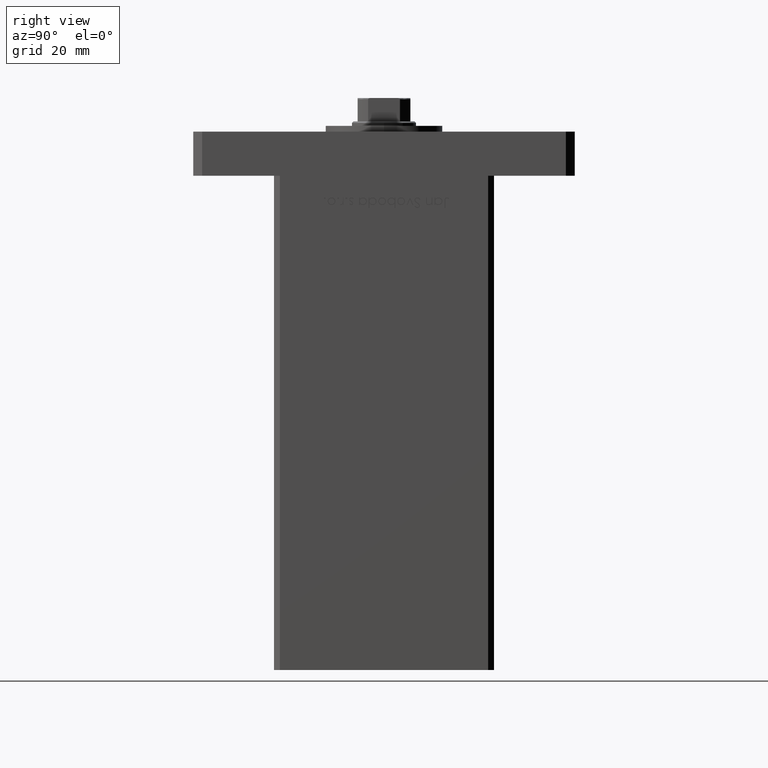
[diagram: clean part render]
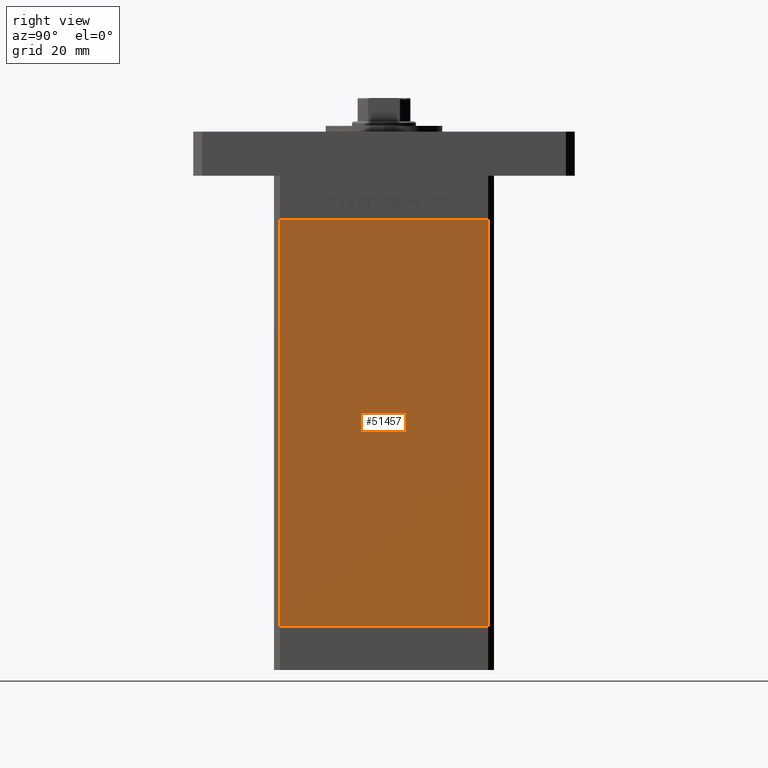
[diagram: same view with one face highlighted and labeled with its STEP entity id]
A machine part, right view. The second image highlights one B-rep face of the part: STEP entity #51457.
In plain terms, the highlighted planar face has unit normal (1, -0, 0).
Its self-contained STEP definition (entity closure, byte-faithful):
#313 = VERTEX_POINT ( 'NONE', #31785 ) ;
#4022 = ORIENTED_EDGE ( 'NONE', *, *, #23486, .F. ) ;
#4423 = ORIENTED_EDGE ( 'NONE', *, *, #21834, .F. ) ;
#6065 = EDGE_CURVE ( 'NONE', #16755, #313, #16705, .T. ) ;
#10712 = FACE_OUTER_BOUND ( 'NONE', #16192, .T. ) ;
#11415 = AXIS2_PLACEMENT_3D ( 'NONE', #47873, #31356, #18600 ) ;
#14316 = DIRECTION ( 'NONE',  ( -2.931927001650941360E-16, -1.000000000000000000, 0.000000000000000000 ) ) ;
#15122 = LINE ( 'NONE', #30885, #52526 ) ;
#15583 = LINE ( 'NONE', #48942, #18322 ) ;
#15817 = CARTESIAN_POINT ( 'NONE',  ( 42.50000000000000711, 35.50000000000001421, 138.5000000000000000 ) ) ;
#16192 = EDGE_LOOP ( 'NONE', ( #4423, #4022, #45965, #34533 ) ) ;
#16705 = LINE ( 'NONE', #33265, #53078 ) ;
#16755 = VERTEX_POINT ( 'NONE', #52860 ) ;
#17673 = VERTEX_POINT ( 'NONE', #38532 ) ;
#18322 = VECTOR ( 'NONE', #32148, 1000.000000000000000 ) ;
#18600 = DIRECTION ( 'NONE',  ( 2.931927001650941360E-16, 1.000000000000000000, 0.000000000000000000 ) ) ;
#21834 = EDGE_CURVE ( 'NONE', #17673, #39495, #15122, .T. ) ;
#23468 = PLANE ( 'NONE',  #11415 ) ;
#23486 = EDGE_CURVE ( 'NONE', #16755, #17673, #23960, .T. ) ;
#23960 = LINE ( 'NONE', #15817, #39565 ) ;
#28312 = DIRECTION ( 'NONE',  ( -0.000000000000000000, -0.000000000000000000, -1.000000000000000000 ) ) ;
#30885 = CARTESIAN_POINT ( 'NONE',  ( 42.50000000000000711, 35.50000000000001421, 0.000000000000000000 ) ) ;
#31356 = DIRECTION ( 'NONE',  ( 1.000000000000000000, -2.931927001650941360E-16, 0.000000000000000000 ) ) ;
#31785 = CARTESIAN_POINT ( 'NONE',  ( 42.49999999999998579, -35.50000000000000711, 138.5000000000000000 ) ) ;
#32148 = DIRECTION ( 'NONE',  ( -0.000000000000000000, -0.000000000000000000, -1.000000000000000000 ) ) ;
#33265 = CARTESIAN_POINT ( 'NONE',  ( 42.50000000000000711, 35.50000000000001421, 138.5000000000000000 ) ) ;
#34533 = ORIENTED_EDGE ( 'NONE', *, *, #41923, .T. ) ;
#37845 = DIRECTION ( 'NONE',  ( -2.931927001650941360E-16, -1.000000000000000000, 0.000000000000000000 ) ) ;
#38532 = CARTESIAN_POINT ( 'NONE',  ( 42.50000000000000711, 35.50000000000001421, 0.000000000000000000 ) ) ;
#39495 = VERTEX_POINT ( 'NONE', #44345 ) ;
#39565 = VECTOR ( 'NONE', #28312, 1000.000000000000000 ) ;
#41923 = EDGE_CURVE ( 'NONE', #313, #39495, #15583, .T. ) ;
#44345 = CARTESIAN_POINT ( 'NONE',  ( 42.49999999999998579, -35.50000000000000711, 0.000000000000000000 ) ) ;
#45965 = ORIENTED_EDGE ( 'NONE', *, *, #6065, .T. ) ;
#47873 = CARTESIAN_POINT ( 'NONE',  ( 42.50000000000000711, 35.50000000000001421, 138.5000000000000000 ) ) ;
#48942 = CARTESIAN_POINT ( 'NONE',  ( 42.49999999999998579, -35.50000000000000711, 138.5000000000000000 ) ) ;
#51457 = ADVANCED_FACE ( 'NONE', ( #10712 ), #23468, .T. ) ;
#52526 = VECTOR ( 'NONE', #14316, 1000.000000000000000 ) ;
#52860 = CARTESIAN_POINT ( 'NONE',  ( 42.50000000000000711, 35.50000000000001421, 138.5000000000000000 ) ) ;
#53078 = VECTOR ( 'NONE', #37845, 1000.000000000000000 ) ;